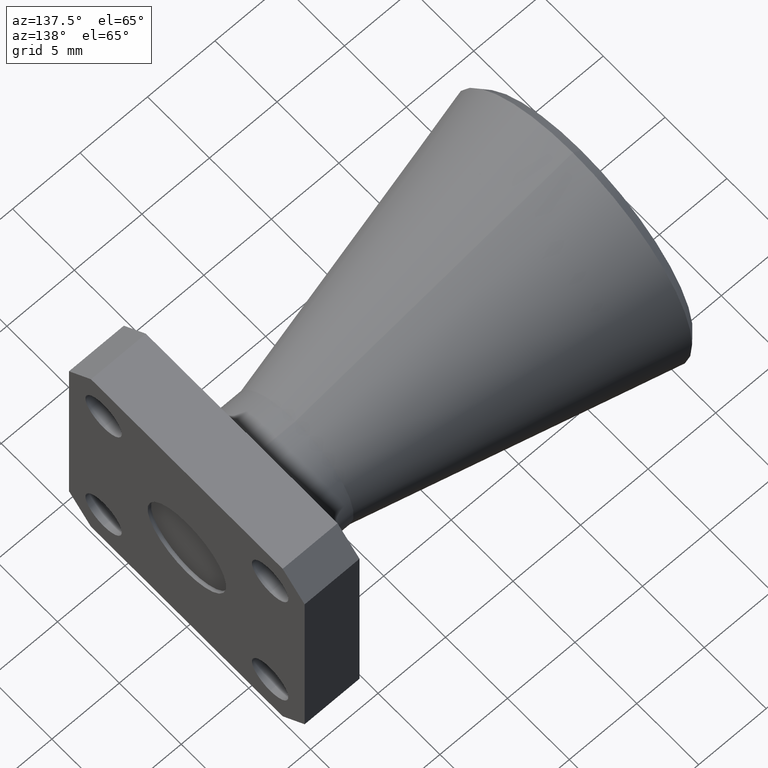
[diagram: clean part render]
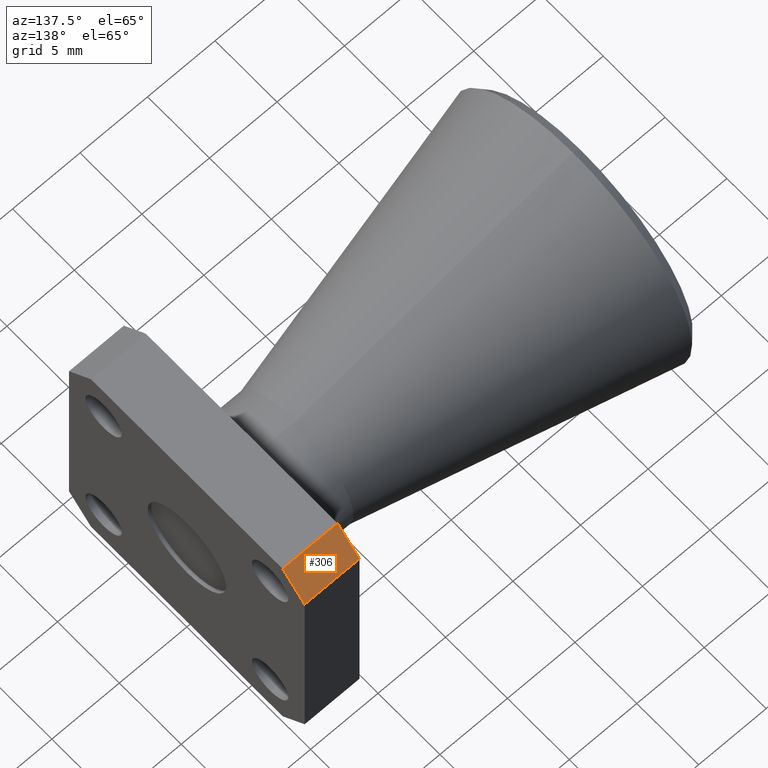
[diagram: same view with one face highlighted and labeled with its STEP entity id]
A machine part, auxiliary view. The second image highlights one B-rep face of the part: STEP entity #306.
In plain terms, the highlighted planar face has unit normal (0, -0.7071, -0.7071).
Its self-contained STEP definition (entity closure, byte-faithful):
#2 = FACE_OUTER_BOUND ( 'NONE', #323, .T. ) ;
#11 = EDGE_CURVE ( 'NONE', #844, #597, #652, .T. ) ;
#55 = VECTOR ( 'NONE', #838, 39.37007874015748100 ) ;
#79 = DIRECTION ( 'NONE',  ( -1.000000000000000000, 0.0000000000000000000, 0.0000000000000000000 ) ) ;
#118 = ORIENTED_EDGE ( 'NONE', *, *, #659, .F. ) ;
#125 = VECTOR ( 'NONE', #636, 39.37007874015748100 ) ;
#172 = CARTESIAN_POINT ( 'NONE',  ( 0.0000000000000000000, 0.3049999999999993800, 0.3750000000000001100 ) ) ;
#193 = VECTOR ( 'NONE', #415, 39.37007874015748100 ) ;
#201 = CARTESIAN_POINT ( 'NONE',  ( -0.1600000000000000000, 0.3399999999999993000, 0.3400000000000006400 ) ) ;
#208 = CARTESIAN_POINT ( 'NONE',  ( -0.1600000000000000000, 0.3750000000000000600, 0.3050000000000000500 ) ) ;
#232 = LINE ( 'NONE', #208, #193 ) ;
#241 = LINE ( 'NONE', #628, #125 ) ;
#253 = ORIENTED_EDGE ( 'NONE', *, *, #11, .F. ) ;
#260 = VECTOR ( 'NONE', #79, 39.37007874015748100 ) ;
#306 = ADVANCED_FACE ( 'NONE', ( #2 ), #451, .F. ) ;
#323 = EDGE_LOOP ( 'NONE', ( #253, #118, #527, #682 ) ) ;
#344 = CARTESIAN_POINT ( 'NONE',  ( -0.1600000000000000000, 0.3049999999999996600, 0.3750000000000001100 ) ) ;
#346 = AXIS2_PLACEMENT_3D ( 'NONE', #447, #718, #863 ) ;
#380 = VERTEX_POINT ( 'NONE', #172 ) ;
#415 = DIRECTION ( 'NONE',  ( 1.000000000000000000, 0.0000000000000000000, 0.0000000000000000000 ) ) ;
#447 = CARTESIAN_POINT ( 'NONE',  ( -0.1600000000000000000, 0.3750000000000000600, 0.3050000000000000500 ) ) ;
#451 = PLANE ( 'NONE',  #346 ) ;
#477 = CARTESIAN_POINT ( 'NONE',  ( -0.1600000000000000000, 0.3750000000000000600, 0.3050000000000000500 ) ) ;
#527 = ORIENTED_EDGE ( 'NONE', *, *, #656, .F. ) ;
#577 = CARTESIAN_POINT ( 'NONE',  ( -0.1600000000000000000, 0.3049999999999993800, 0.3750000000000001100 ) ) ;
#597 = VERTEX_POINT ( 'NONE', #477 ) ;
#628 = CARTESIAN_POINT ( 'NONE',  ( 0.0000000000000000000, 0.3399999999999993000, 0.3400000000000006400 ) ) ;
#636 = DIRECTION ( 'NONE',  ( -0.0000000000000000000, -0.7071067811865489100, 0.7071067811865461300 ) ) ;
#652 = LINE ( 'NONE', #201, #55 ) ;
#656 = EDGE_CURVE ( 'NONE', #745, #380, #241, .T. ) ;
#659 = EDGE_CURVE ( 'NONE', #380, #844, #810, .T. ) ;
#682 = ORIENTED_EDGE ( 'NONE', *, *, #725, .F. ) ;
#718 = DIRECTION ( 'NONE',  ( 0.0000000000000000000, -0.7071067811865461300, -0.7071067811865489100 ) ) ;
#725 = EDGE_CURVE ( 'NONE', #597, #745, #232, .T. ) ;
#745 = VERTEX_POINT ( 'NONE', #835 ) ;
#810 = LINE ( 'NONE', #344, #260 ) ;
#835 = CARTESIAN_POINT ( 'NONE',  ( 0.0000000000000000000, 0.3750000000000000600, 0.3050000000000000500 ) ) ;
#838 = DIRECTION ( 'NONE',  ( -0.0000000000000000000, 0.7071067811865489100, -0.7071067811865461300 ) ) ;
#844 = VERTEX_POINT ( 'NONE', #577 ) ;
#863 = DIRECTION ( 'NONE',  ( 1.000000000000000000, 0.0000000000000000000, -0.0000000000000000000 ) ) ;